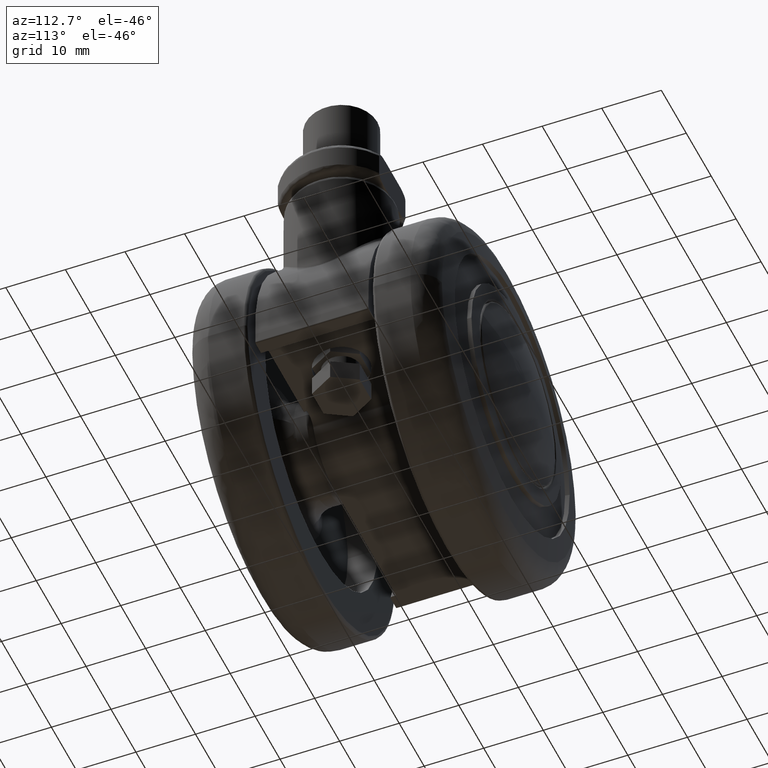
[diagram: clean part render]
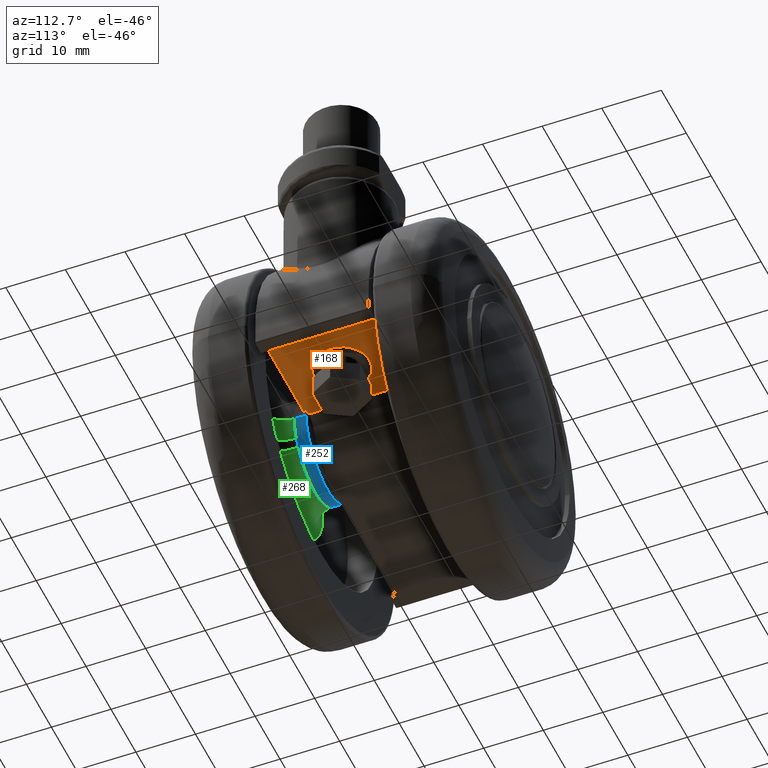
[diagram: same view with three faces highlighted in distinct colors, each labeled with its STEP entity id]
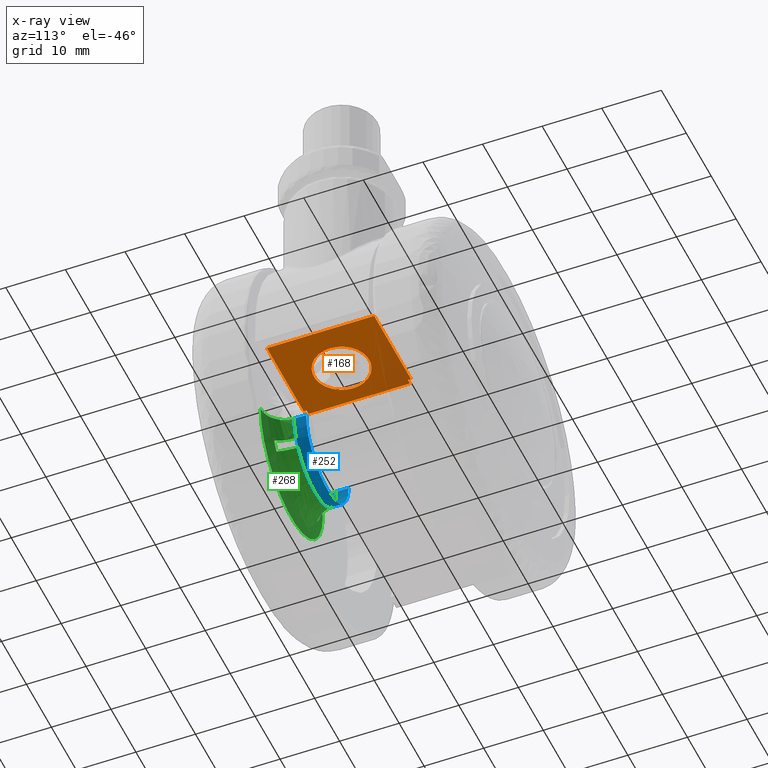
[diagram: x-ray of the same camera — body ghosted, the three highlighted faces saturated]
A machine part, auxiliary view with three faces highlighted in distinct colors.
The next image is the same camera in x-ray (body ghosted, the three faces saturated) — at least one of them is partly hidden behind the body in this view.
Their STEP definitions:

[orange] entity #168 — the highlighted planar face has unit normal (0, 0, 1).
#168=ADVANCED_FACE('',(#410,#411),#409,.F.);
#409=PLANE('',#2024);
#410=FACE_OUTER_BOUND('',#2025,.T.);
#411=FACE_BOUND('',#2026,.T.);
#2021=CARTESIAN_POINT('',(2.70133149300E+01,1.08000000000E+01,-1.50000000000E+00));
#2022=DIRECTION('',(0.00000000000E+00,0.00000000000E+00,1.00000000000E+00));
#2023=DIRECTION('',(-1.00000000000E+00,0.00000000000E+00,0.00000000000E+00));
#2024=AXIS2_PLACEMENT_3D('',#2021,#2022,#2023);
#2025=EDGE_LOOP('',(#4573,#4574,#4575,#4576,#4577,#4578,#4579,#4580));
#2026=EDGE_LOOP('',(#4581,#4582));
#4573=ORIENTED_EDGE('',*,*,#5294,.T.);
#4574=ORIENTED_EDGE('',*,*,#5276,.F.);
#4575=ORIENTED_EDGE('',*,*,#5295,.T.);
#4576=ORIENTED_EDGE('',*,*,#5296,.F.);
#4577=ORIENTED_EDGE('',*,*,#5297,.T.);
#4578=ORIENTED_EDGE('',*,*,#5298,.F.);
#4579=ORIENTED_EDGE('',*,*,#5299,.T.);
#4580=ORIENTED_EDGE('',*,*,#5286,.F.);
#4581=ORIENTED_EDGE('',*,*,#5300,.F.);
#4582=ORIENTED_EDGE('',*,*,#5301,.F.);
#5276=EDGE_CURVE('',#5957,#5964,#5965,.T.);
#5286=EDGE_CURVE('',#6026,#6033,#6034,.T.);
#5294=EDGE_CURVE('',#6026,#5964,#6088,.T.);
#5295=EDGE_CURVE('',#5957,#6094,#6095,.T.);
#5296=EDGE_CURVE('',#6101,#6094,#6102,.T.);
#5297=EDGE_CURVE('',#6101,#6108,#6109,.T.);
#5298=EDGE_CURVE('',#6115,#6108,#6116,.T.);
#5299=EDGE_CURVE('',#6115,#6033,#6122,.T.);
#5300=EDGE_CURVE('',#6128,#6129,#6130,.T.);
#5301=EDGE_CURVE('',#6129,#6128,#6136,.T.);
#5957=VERTEX_POINT('',#8413);
#5964=VERTEX_POINT('',#8418);
#5965=LINE('',#8419,#8420);
#6026=VERTEX_POINT('',#8459);
#6033=VERTEX_POINT('',#8464);
#6034=LINE('',#8465,#8466);
#6088=LINE('',#8501,#8502);
#6094=VERTEX_POINT('',#8504);
#6095=LINE('',#8505,#8506);
#6101=VERTEX_POINT('',#8508);
#6102=LINE('',#8509,#8510);
#6108=VERTEX_POINT('',#8512);
#6109=LINE('',#8513,#8514);
#6115=VERTEX_POINT('',#8516);
#6116=LINE('',#8517,#8518);
#6122=LINE('',#8520,#8521);
#6128=VERTEX_POINT('',#8523);
#6129=VERTEX_POINT('',#8524);
#6130=CIRCLE('',#8528,4.65000000000E+00);
#6136=CIRCLE('',#8532,4.65000000000E+00);
#8413=CARTESIAN_POINT('',(1.07331262920E+01,8.50000000000E+00,-1.50000000000E+00));
#8418=CARTESIAN_POINT('',(9.89949493661E+00,8.50000000000E+00,-1.50000000000E+00));
#8419=CARTESIAN_POINT('',(1.07331262920E+01,8.50000000000E+00,-1.50000000000E+00));
#8420=VECTOR('',#8421,8.33631355387E-01);
#8421=DIRECTION('',(-1.00000000000E+00,0.00000000000E+00,0.00000000000E+00));
#8459=CARTESIAN_POINT('',(9.89949493661E+00,-8.50000000000E+00,-1.50000000000E+00));
#8464=CARTESIAN_POINT('',(1.07331262920E+01,-8.50000000000E+00,-1.50000000000E+00));
#8465=CARTESIAN_POINT('',(9.89949493661E+00,-8.50000000000E+00,-1.50000000000E+00));
#8466=VECTOR('',#8467,8.33631355387E-01);
#8467=DIRECTION('',(1.00000000000E+00,0.00000000000E+00,0.00000000000E+00));
#8501=CARTESIAN_POINT('',(9.89949493661E+00,-8.50000000000E+00,-1.50000000000E+00));
#8502=VECTOR('',#8503,1.70000000000E+01);
#8503=DIRECTION('',(0.00000000000E+00,1.00000000000E+00,0.00000000000E+00));
#8504=CARTESIAN_POINT('',(1.07331262920E+01,9.00000000000E+00,-1.50000000000E+00));
#8505=CARTESIAN_POINT('',(1.07331262920E+01,8.50000000000E+00,-1.50000000000E+00));
#8506=VECTOR('',#8507,5.00000000000E-01);
#8507=DIRECTION('',(0.00000000000E+00,1.00000000000E+00,0.00000000000E+00));
#8508=CARTESIAN_POINT('',(2.54575131125E+01,9.00000000000E+00,-1.50000000000E+00));
#8509=CARTESIAN_POINT('',(2.54575131125E+01,9.00000000000E+00,-1.50000000000E+00));
#8510=VECTOR('',#8511,1.47243868205E+01);
#8511=DIRECTION('',(-1.00000000000E+00,0.00000000000E+00,0.00000000000E+00));
#8512=CARTESIAN_POINT('',(2.54575131125E+01,-9.00000000000E+00,-1.50000000000E+00));
#8513=CARTESIAN_POINT('',(2.54575131125E+01,9.00000000000E+00,-1.50000000000E+00));
#8514=VECTOR('',#8515,1.80000000000E+01);
#8515=DIRECTION('',(-1.97372982156E-16,-1.00000000000E+00,0.00000000000E+00));
#8516=CARTESIAN_POINT('',(1.07331262920E+01,-9.00000000000E+00,-1.50000000000E+00));
#8517=CARTESIAN_POINT('',(1.07331262920E+01,-9.00000000000E+00,-1.50000000000E+00));
#8518=VECTOR('',#8519,1.47243868205E+01);
#8519=DIRECTION('',(1.00000000000E+00,0.00000000000E+00,0.00000000000E+00));
#8520=CARTESIAN_POINT('',(1.07331262920E+01,-9.00000000000E+00,-1.50000000000E+00));
#8521=VECTOR('',#8522,5.00000000000E-01);
#8522=DIRECTION('',(-3.55271367880E-15,1.00000000000E+00,0.00000000000E+00));
#8523=CARTESIAN_POINT('',(1.23500000000E+01,-2.96059473233E-14,-1.50000000000E+00));
#8524=CARTESIAN_POINT('',(2.16500000000E+01,-2.85386886640E-14,-1.50000000000E+00));
#8525=CARTESIAN_POINT('',(1.70000000000E+01,-2.96775913801E-14,-1.50000000000E+00));
#8526=DIRECTION('',(-0.00000000000E+00,0.00000000000E+00,-1.00000000000E+00));
#8527=DIRECTION('',(1.00000000000E+00,1.22464679915E-16,-0.00000000000E+00));
#8528=AXIS2_PLACEMENT_3D('',#8525,#8526,#8527);
#8529=CARTESIAN_POINT('',(1.70000000000E+01,-2.96775913801E-14,-1.50000000000E+00));
#8530=DIRECTION('',(-0.00000000000E+00,0.00000000000E+00,-1.00000000000E+00));
#8531=DIRECTION('',(1.00000000000E+00,1.22464679915E-16,-0.00000000000E+00));
#8532=AXIS2_PLACEMENT_3D('',#8529,#8530,#8531);

[blue] entity #252 — the highlighted cylindrical surface (partial cylindrical patch) has radius 8.5 mm, axis along (-0, 1, -0).
#252=ADVANCED_FACE('',(#1262),#1261,.T.);
#1261=CYLINDRICAL_SURFACE('',#3889,8.50000000000E+00);
#1262=FACE_OUTER_BOUND('',#3890,.T.);
#3886=CARTESIAN_POINT('',(0.00000000000E+00,0.00000000000E+00,2.00767672062E+00));
#3887=DIRECTION('',(-0.00000000000E+00,-0.00000000000E+00,-1.00000000000E+00));
#3888=DIRECTION('',(-1.00000000000E+00,-0.00000000000E+00,-0.00000000000E+00));
#3889=AXIS2_PLACEMENT_3D('',#3886,#3887,#3888);
#3890=EDGE_LOOP('',(#4954,#4955,#4956,#4957,#4958,#4959,#4960,#4961));
#4954=ORIENTED_EDGE('',*,*,#5470,.T.);
#4955=ORIENTED_EDGE('',*,*,#5414,.T.);
#4956=ORIENTED_EDGE('',*,*,#5471,.T.);
#4957=ORIENTED_EDGE('',*,*,#5411,.T.);
#4958=ORIENTED_EDGE('',*,*,#5472,.T.);
#4959=ORIENTED_EDGE('',*,*,#5466,.T.);
#4960=ORIENTED_EDGE('',*,*,#5473,.T.);
#4961=ORIENTED_EDGE('',*,*,#5469,.F.);
#5411=EDGE_CURVE('',#6828,#6843,#6850,.T.);
#5414=EDGE_CURVE('',#6856,#6863,#6870,.T.);
#5466=EDGE_CURVE('',#7224,#7217,#7225,.T.);
#5469=EDGE_CURVE('',#7237,#7216,#7244,.T.);
#5470=EDGE_CURVE('',#7237,#6856,#7250,.T.);
#5471=EDGE_CURVE('',#6863,#6828,#7256,.T.);
#5472=EDGE_CURVE('',#6843,#7224,#7262,.T.);
#5473=EDGE_CURVE('',#7217,#7216,#7268,.T.);
#6828=VERTEX_POINT('',#9087);
#6843=VERTEX_POINT('',#9104);
#6850=(BOUNDED_CURVE() B_SPLINE_CURVE(3,(#9109,#9110,#9111,#9112,#9113,#9114),.UNSPECIFIED.,.F.,.F.) B_SPLINE_CURVE_WITH_KNOTS((4,2,4),(0.00000000000E+00,7.70611198926E-04,1.54122239785E-03),.UNSPECIFIED.) CURVE() GEOMETRIC_REPRESENTATION_ITEM() RATIONAL_B_SPLINE_CURVE((1.00000000000E+00,1.00000000000E+00,1.00000000000E+00,1.00000000000E+00,1.00000000000E+00,1.00000000000E+00)) REPRESENTATION_ITEM('') );
#6856=VERTEX_POINT('',#9115);
#6863=VERTEX_POINT('',#9120);
#6870=(BOUNDED_CURVE() B_SPLINE_CURVE(3,(#9125,#9126,#9127,#9128,#9129,#9130),.UNSPECIFIED.,.F.,.F.) B_SPLINE_CURVE_WITH_KNOTS((4,2,4),(0.00000000000E+00,7.70611198926E-04,1.54122239785E-03),.UNSPECIFIED.) CURVE() GEOMETRIC_REPRESENTATION_ITEM() RATIONAL_B_SPLINE_CURVE((1.00000000000E+00,1.00000000000E+00,1.00000000000E+00,1.00000000000E+00,1.00000000000E+00,1.00000000000E+00)) REPRESENTATION_ITEM('') );
#7216=VERTEX_POINT('',#9369);
#7217=VERTEX_POINT('',#9370);
#7224=VERTEX_POINT('',#9375);
#7225=(BOUNDED_CURVE() B_SPLINE_CURVE(1,(#9376,#9377),.UNSPECIFIED.,.F.,.F.) B_SPLINE_CURVE_WITH_KNOTS((2,2),(8.96818439170E-02,9.16666655561E-01),.UNSPECIFIED.) CURVE() GEOMETRIC_REPRESENTATION_ITEM() RATIONAL_B_SPLINE_CURVE((1.00000000000E+00,1.00000000000E+00)) REPRESENTATION_ITEM('') );
#7237=VERTEX_POINT('',#9382);
#7244=(BOUNDED_CURVE() B_SPLINE_CURVE(1,(#9387,#9388),.UNSPECIFIED.,.F.,.F.) B_SPLINE_CURVE_WITH_KNOTS((2,2),(8.96818539656E-02,9.16666666667E-01),.UNSPECIFIED.) CURVE() GEOMETRIC_REPRESENTATION_ITEM() RATIONAL_B_SPLINE_CURVE((7.50000000000E-01,7.50000000000E-01)) REPRESENTATION_ITEM('') );
#7250=CIRCLE('',#9392,8.50000000000E+00);
#7256=CIRCLE('',#9396,8.50000000000E+00);
#7262=CIRCLE('',#9400,8.50000000000E+00);
#7268=CIRCLE('',#9404,8.50000000000E+00);
#9087=CARTESIAN_POINT('',(-6.94562105686E+00,-4.89983143939E+00,3.00000000000E+00));
#9104=CARTESIAN_POINT('',(-7.71618902921E+00,-3.56516856061E+00,3.00000000000E+00));
#9109=CARTESIAN_POINT('',(-6.94562105686E+00,-4.89983143939E+00,3.00000000000E+00));
#9110=CARTESIAN_POINT('',(-7.09413831819E+00,-4.68930488754E+00,3.00000000000E+00));
#9111=CARTESIAN_POINT('',(-7.23255947090E+00,-4.47281547559E+00,3.01533041055E+00));
#9112=CARTESIAN_POINT('',(-7.48947477384E+00,-4.02787318455E+00,3.01535341529E+00));
#9113=CARTESIAN_POINT('',(-7.60807237796E+00,-3.79916830117E+00,3.00000000000E+00));
#9114=CARTESIAN_POINT('',(-7.71618902921E+00,-3.56516856061E+00,3.00000000000E+00));
#9115=CARTESIAN_POINT('',(7.71618902921E+00,-3.56516856061E+00,3.00000000000E+00));
#9120=CARTESIAN_POINT('',(6.94562105686E+00,-4.89983143939E+00,3.00000000000E+00));
#9125=CARTESIAN_POINT('',(7.71618902921E+00,-3.56516856061E+00,3.00000000000E+00));
#9126=CARTESIAN_POINT('',(7.60812631780E+00,-3.79905155774E+00,3.00000000000E+00));
#9127=CARTESIAN_POINT('',(7.48985156375E+00,-4.02717249839E+00,3.01533041055E+00));
#9128=CARTESIAN_POINT('',(7.23297788796E+00,-4.47213882287E+00,3.01535341529E+00));
#9129=CARTESIAN_POINT('',(7.09421245104E+00,-4.68919980256E+00,3.00000000000E+00));
#9130=CARTESIAN_POINT('',(6.94562105686E+00,-4.89983143939E+00,3.00000000000E+00));
#9369=CARTESIAN_POINT('',(8.50000000000E+00,0.00000000000E+00,1.00000000000E+00));
#9370=CARTESIAN_POINT('',(-8.50000000000E+00,8.88178419700E-16,1.00000000000E+00));
#9375=CARTESIAN_POINT('',(-8.50000000000E+00,2.68219846214E-07,3.00000000000E+00));
#9376=CARTESIAN_POINT('',(-8.50000000000E+00,0.00000000000E+00,3.00000002430E+00));
#9377=CARTESIAN_POINT('',(-8.50000000000E+00,0.00000000000E+00,1.00000002686E+00));
#9382=CARTESIAN_POINT('',(8.49999863885E+00,4.81035715597E-03,3.00000000000E+00));
#9387=CARTESIAN_POINT('',(8.50000000000E+00,-2.96059473233E-16,3.00000000000E+00));
#9388=CARTESIAN_POINT('',(8.50000000000E+00,-2.96059473233E-16,1.00000000000E+00));
#9389=CARTESIAN_POINT('',(0.00000000000E+00,0.00000000000E+00,3.00000000000E+00));
#9390=DIRECTION('',(0.00000000000E+00,0.00000000000E+00,-1.00000000000E+00));
#9391=DIRECTION('',(-9.06550555697E-02,-9.95882352941E-01,-0.00000000000E+00));
#9392=AXIS2_PLACEMENT_3D('',#9389,#9390,#9391);
#9393=CARTESIAN_POINT('',(0.00000000000E+00,0.00000000000E+00,3.00000000000E+00));
#9394=DIRECTION('',(0.00000000000E+00,0.00000000000E+00,-1.00000000000E+00));
#9395=DIRECTION('',(-8.17131889043E-01,5.76450757575E-01,-0.00000000000E+00));
#9396=AXIS2_PLACEMENT_3D('',#9393,#9394,#9395);
#9397=CARTESIAN_POINT('',(0.00000000000E+00,0.00000000000E+00,3.00000000000E+00));
#9398=DIRECTION('',(0.00000000000E+00,0.00000000000E+00,-1.00000000000E+00));
#9399=DIRECTION('',(1.00000000000E+00,-1.22464679915E-16,-0.00000000000E+00));
#9400=AXIS2_PLACEMENT_3D('',#9397,#9398,#9399);
#9401=CARTESIAN_POINT('',(0.00000000000E+00,0.00000000000E+00,1.00000000000E+00));
#9402=DIRECTION('',(0.00000000000E+00,0.00000000000E+00,1.00000000000E+00));
#9403=DIRECTION('',(1.00000000000E+00,-1.22460635382E-16,0.00000000000E+00));
#9404=AXIS2_PLACEMENT_3D('',#9401,#9402,#9403);

[green] entity #268 — the highlighted face is a freeform B-spline surface patch.
#268=ADVANCED_FACE('',(#1422),#1421,.F.);
#1421=( BOUNDED_SURFACE() B_SPLINE_SURFACE( 2,2,((#4125,#4126,#4127,#4128,#4129),(#4130,#4131,#4132,#4133,#4134),(#4135,#4136,#4137,#4138,#4139),(#4140,#4141,#4142,#4143,#4144),(#4145,#4146,#4147,#4148,#4149)), .UNSPECIFIED.,.F.,.F.,.F.) B_SPLINE_SURFACE_WITH_KNOTS((3,2,3),(3,2,3),(1.57079632680E+00,2.09441127550E+00,3.14164117290E+00),(3.14159265359E+00,4.71238898038E+00,6.28318530718E+00), .UNSPECIFIED. ) GEOMETRIC_REPRESENTATION_ITEM() RATIONAL_B_SPLINE_SURFACE(((9.33008658559E-01,6.59736749373E-01,9.33008658559E-01,6.59736749373E-01,9.33008658559E-01),(9.33008658559E-01,6.59736749373E-01,9.33008658559E-01,6.59736749373E-01,9.33008658559E-01),(1.00000000000E+00,7.07106781187E-01,1.00000000000E+00,7.07106781187E-01,1.00000000000E+00),(8.66017317119E-01,6.12366717560E-01,8.66017317119E-01,6.12366717560E-01,8.66017317119E-01),(1.00000000000E+00,7.07106781187E-01,1.00000000000E+00,7.07106781187E-01,1.00000000000E+00))) REPRESENTATION_ITEM('') SURFACE() );
#1422=FACE_OUTER_BOUND('',#4150,.T.);
#4125=CARTESIAN_POINT('',(1.25000000000E+01,-1.53075794228E-15,7.00000000000E+00));
#4126=CARTESIAN_POINT('',(1.25000000000E+01,-1.25000000000E+01,7.00000000000E+00));
#4127=CARTESIAN_POINT('',(-1.53075794228E-15,-1.25000000000E+01,7.00000000000E+00));
#4128=CARTESIAN_POINT('',(-1.25000000000E+01,-1.25000000000E+01,7.00000000000E+00));
#4129=CARTESIAN_POINT('',(-1.25000000000E+01,1.53075794228E-15,7.00000000000E+00));
#4130=CARTESIAN_POINT('',(1.14281685616E+01,-1.39950078331E-15,7.00000000000E+00));
#4131=CARTESIAN_POINT('',(1.14281685616E+01,-1.14281685616E+01,7.00000000000E+00));
#4132=CARTESIAN_POINT('',(-1.39950078331E-15,-1.14281685616E+01,7.00000000000E+00));
#4133=CARTESIAN_POINT('',(-1.14281685616E+01,-1.14281685616E+01,7.00000000000E+00));
#4134=CARTESIAN_POINT('',(-1.14281685616E+01,1.39950078331E-15,7.00000000000E+00));
#4135=CARTESIAN_POINT('',(1.04999439750E+01,-1.28582981065E-15,6.46406926847E+00));
#4136=CARTESIAN_POINT('',(1.04999439750E+01,-1.04999439750E+01,6.46406926847E+00));
#4137=CARTESIAN_POINT('',(-1.28582981065E-15,-1.04999439750E+01,6.46406926847E+00));
#4138=CARTESIAN_POINT('',(-1.04999439750E+01,-1.04999439750E+01,6.46406926847E+00));
#4139=CARTESIAN_POINT('',(-1.04999439750E+01,1.28582981065E-15,6.46406926847E+00));
#4140=CARTESIAN_POINT('',(8.49988794996E+00,-1.04090167903E-15,5.30929325415E+00));
#4141=CARTESIAN_POINT('',(8.49988794996E+00,-8.49988794996E+00,5.30929325415E+00));
#4142=CARTESIAN_POINT('',(-1.04090167903E-15,-8.49988794996E+00,5.30929325415E+00));
#4143=CARTESIAN_POINT('',(-8.49988794996E+00,-8.49988794996E+00,5.30929325415E+00));
#4144=CARTESIAN_POINT('',(-8.49988794996E+00,1.04090167903E-15,5.30929325415E+00));
#4145=CARTESIAN_POINT('',(8.50000000471E+00,-1.04091540133E-15,2.99980592274E+00));
#4146=CARTESIAN_POINT('',(8.50000000471E+00,-8.50000000471E+00,2.99980592274E+00));
#4147=CARTESIAN_POINT('',(-1.04091540133E-15,-8.50000000471E+00,2.99980592274E+00));
#4148=CARTESIAN_POINT('',(-8.50000000471E+00,-8.50000000471E+00,2.99980592274E+00));
#4149=CARTESIAN_POINT('',(-8.50000000471E+00,1.04091540133E-15,2.99980592274E+00));
#4150=EDGE_LOOP('',(#5029,#5030,#5031,#5032,#5033,#5034,#5035,#5036,#5037,#5038,#5039,#5040));
#5029=ORIENTED_EDGE('',*,*,#5432,.F.);
#5030=ORIENTED_EDGE('',*,*,#5492,.T.);
#5031=ORIENTED_EDGE('',*,*,#5472,.F.);
#5032=ORIENTED_EDGE('',*,*,#5410,.T.);
#5033=ORIENTED_EDGE('',*,*,#5451,.F.);
#5034=ORIENTED_EDGE('',*,*,#5408,.F.);
#5035=ORIENTED_EDGE('',*,*,#5471,.F.);
#5036=ORIENTED_EDGE('',*,*,#5413,.F.);
#5037=ORIENTED_EDGE('',*,*,#5407,.F.);
#5038=ORIENTED_EDGE('',*,*,#5412,.T.);
#5039=ORIENTED_EDGE('',*,*,#5470,.F.);
#5040=ORIENTED_EDGE('',*,*,#5493,.F.);
#5407=EDGE_CURVE('',#6814,#6815,#6822,.T.);
#5408=EDGE_CURVE('',#6828,#6829,#6830,.T.);
#5410=EDGE_CURVE('',#6843,#6836,#6844,.T.);
#5412=EDGE_CURVE('',#6814,#6856,#6857,.T.);
#5413=EDGE_CURVE('',#6815,#6863,#6864,.T.);
#5432=EDGE_CURVE('',#6989,#6988,#6996,.T.);
#5451=EDGE_CURVE('',#6829,#6836,#7128,.T.);
#5470=EDGE_CURVE('',#7237,#6856,#7250,.T.);
#5471=EDGE_CURVE('',#6863,#6828,#7256,.T.);
#5472=EDGE_CURVE('',#6843,#7224,#7262,.T.);
#5492=EDGE_CURVE('',#6989,#7224,#7386,.T.);
#5493=EDGE_CURVE('',#6988,#7237,#7392,.T.);
#6814=VERTEX_POINT('',#9071);
#6815=VERTEX_POINT('',#9072);
#6822=CIRCLE('',#9086,1.00000000000E+01);
#6828=VERTEX_POINT('',#9087);
#6829=VERTEX_POINT('',#9088);
#6830=CIRCLE('',#9092,4.00000000000E+00);
#6836=VERTEX_POINT('',#9093);
#6843=VERTEX_POINT('',#9104);
#6844=CIRCLE('',#9108,4.00000000000E+00);
#6856=VERTEX_POINT('',#9115);
#6857=CIRCLE('',#9119,4.00000000000E+00);
#6863=VERTEX_POINT('',#9120);
#6864=CIRCLE('',#9124,4.00000000000E+00);
#6988=VERTEX_POINT('',#9211);
#6989=VERTEX_POINT('',#9212);
#6996=CIRCLE('',#9220,1.25000000000E+01);
#7128=CIRCLE('',#9320,1.00000000000E+01);
#7224=VERTEX_POINT('',#9375);
#7237=VERTEX_POINT('',#9382);
#7250=CIRCLE('',#9392,8.50000000000E+00);
#7256=CIRCLE('',#9396,8.50000000000E+00);
#7262=CIRCLE('',#9400,8.50000000000E+00);
#7386=(BOUNDED_CURVE() B_SPLINE_CURVE(2,(#9462,#9463,#9464,#9465,#9466),.UNSPECIFIED.,.F.,.F.) B_SPLINE_CURVE_WITH_KNOTS((3,2,3),(1.57079632679E+00,2.09441127550E+00,3.14159037102E+00),.UNSPECIFIED.) CURVE() GEOMETRIC_REPRESENTATION_ITEM() RATIONAL_B_SPLINE_CURVE((9.33008658559E-01,9.33008658559E-01,1.00000000000E+00,8.66023816717E-01,9.99987001435E-01)) REPRESENTATION_ITEM('') );
#7392=(BOUNDED_CURVE() B_SPLINE_CURVE(2,(#9467,#9468,#9469,#9470,#9471),.UNSPECIFIED.,.F.,.F.) B_SPLINE_CURVE_WITH_KNOTS((3,2,3),(1.57079632679E+00,2.09441127550E+00,3.14164117290E+00),.UNSPECIFIED.) CURVE() GEOMETRIC_REPRESENTATION_ITEM() RATIONAL_B_SPLINE_CURVE((9.33008658559E-01,9.33008658559E-01,1.00000000000E+00,8.66017317119E-01,1.00000000000E+00)) REPRESENTATION_ITEM('') );
#9071=CARTESIAN_POINT('',(9.07786944612E+00,-4.19431595366E+00,6.12249899920E+00));
#9072=CARTESIAN_POINT('',(8.17131889043E+00,-5.76450757575E+00,6.12249899920E+00));
#9083=CARTESIAN_POINT('',(0.00000000000E+00,0.00000000000E+00,6.12249899920E+00));
#9084=DIRECTION('',(-0.00000000000E+00,0.00000000000E+00,-1.00000000000E+00));
#9085=DIRECTION('',(1.00000000000E+00,-0.00000000000E+00,-0.00000000000E+00));
#9086=AXIS2_PLACEMENT_3D('',#9083,#9084,#9085);
#9087=CARTESIAN_POINT('',(-6.94562105686E+00,-4.89983143939E+00,3.00000000000E+00));
#9088=CARTESIAN_POINT('',(-8.17131889043E+00,-5.76450757575E+00,6.12249899920E+00));
#9089=CARTESIAN_POINT('',(-1.02141486130E+01,-7.20563446969E+00,3.00000000000E+00));
#9090=DIRECTION('',(5.76450757575E-01,-8.17131889043E-01,-1.04378802245E-16));
#9091=DIRECTION('',(-8.17131889043E-01,-5.76450757575E-01,-2.68673971959E-14));
#9092=AXIS2_PLACEMENT_3D('',#9089,#9090,#9091);
#9093=CARTESIAN_POINT('',(-9.07786944613E+00,-4.19431595366E+00,6.12249899920E+00));
#9104=CARTESIAN_POINT('',(-7.71618902921E+00,-3.56516856061E+00,3.00000000000E+00));
#9105=CARTESIAN_POINT('',(-1.13473368077E+01,-5.24289494207E+00,3.00000000000E+00));
#9106=DIRECTION('',(4.19431595366E-01,-9.07786944613E-01,-2.80002669275E-16));
#9107=DIRECTION('',(-9.07786944613E-01,-4.19431595366E-01,2.68673971959E-14));
#9108=AXIS2_PLACEMENT_3D('',#9105,#9106,#9107);
#9115=CARTESIAN_POINT('',(7.71618902921E+00,-3.56516856061E+00,3.00000000000E+00));
#9116=CARTESIAN_POINT('',(1.13473368077E+01,-5.24289494207E+00,3.00000000000E+00));
#9117=DIRECTION('',(-4.19431595366E-01,-9.07786944612E-01,2.61861919781E-13));
#9118=DIRECTION('',(-5.19584375525E-14,-2.64455124466E-13,-1.00000000000E+00));
#9119=AXIS2_PLACEMENT_3D('',#9116,#9117,#9118);
#9120=CARTESIAN_POINT('',(6.94562105686E+00,-4.89983143939E+00,3.00000000000E+00));
#9121=CARTESIAN_POINT('',(1.02141486130E+01,-7.20563446969E+00,3.00000000000E+00));
#9122=DIRECTION('',(-5.76450757575E-01,-8.17131889043E-01,0.00000000000E+00));
#9123=DIRECTION('',(-0.00000000000E+00,-0.00000000000E+00,-1.00000000000E+00));
#9124=AXIS2_PLACEMENT_3D('',#9121,#9122,#9123);
#9211=CARTESIAN_POINT('',(1.25000000000E+01,0.00000000000E+00,7.00000000000E+00));
#9212=CARTESIAN_POINT('',(-1.25000000000E+01,0.00000000000E+00,7.00000000000E+00));
#9217=CARTESIAN_POINT('',(0.00000000000E+00,0.00000000000E+00,7.00000000000E+00));
#9218=DIRECTION('',(0.00000000000E+00,0.00000000000E+00,1.00000000000E+00));
#9219=DIRECTION('',(1.00000000000E+00,-1.22460635382E-16,0.00000000000E+00));
#9220=AXIS2_PLACEMENT_3D('',#9217,#9218,#9219);
#9317=CARTESIAN_POINT('',(0.00000000000E+00,0.00000000000E+00,6.12249899920E+00));
#9318=DIRECTION('',(-0.00000000000E+00,0.00000000000E+00,-1.00000000000E+00));
#9319=DIRECTION('',(1.00000000000E+00,-0.00000000000E+00,-0.00000000000E+00));
#9320=AXIS2_PLACEMENT_3D('',#9317,#9318,#9319);
#9375=CARTESIAN_POINT('',(-8.50000000000E+00,2.68219846214E-07,3.00000000000E+00));
#9382=CARTESIAN_POINT('',(8.49999863885E+00,4.81035715597E-03,3.00000000000E+00));
#9389=CARTESIAN_POINT('',(0.00000000000E+00,0.00000000000E+00,3.00000000000E+00));
#9390=DIRECTION('',(0.00000000000E+00,0.00000000000E+00,-1.00000000000E+00));
#9391=DIRECTION('',(-9.06550555697E-02,-9.95882352941E-01,-0.00000000000E+00));
#9392=AXIS2_PLACEMENT_3D('',#9389,#9390,#9391);
#9393=CARTESIAN_POINT('',(0.00000000000E+00,0.00000000000E+00,3.00000000000E+00));
#9394=DIRECTION('',(0.00000000000E+00,0.00000000000E+00,-1.00000000000E+00));
#9395=DIRECTION('',(-8.17131889043E-01,5.76450757575E-01,-0.00000000000E+00));
#9396=AXIS2_PLACEMENT_3D('',#9393,#9394,#9395);
#9397=CARTESIAN_POINT('',(0.00000000000E+00,0.00000000000E+00,3.00000000000E+00));
#9398=DIRECTION('',(0.00000000000E+00,0.00000000000E+00,-1.00000000000E+00));
#9399=DIRECTION('',(1.00000000000E+00,-1.22464679915E-16,-0.00000000000E+00));
#9400=AXIS2_PLACEMENT_3D('',#9397,#9398,#9399);
#9462=CARTESIAN_POINT('',(-1.25000000000E+01,1.53075794228E-15,7.00000000000E+00));
#9463=CARTESIAN_POINT('',(-1.14281685616E+01,1.39950078331E-15,7.00000000000E+00));
#9464=CARTESIAN_POINT('',(-1.04999439750E+01,1.28582981065E-15,6.46406926847E+00));
#9465=CARTESIAN_POINT('',(-8.49999998404E+00,1.04091539879E-15,5.30935793947E+00));
#9466=CARTESIAN_POINT('',(-8.50000000000E+00,1.04091540075E-15,2.99999997236E+00));
#9467=CARTESIAN_POINT('',(1.25000000000E+01,-1.53075794228E-15,7.00000000000E+00));
#9468=CARTESIAN_POINT('',(1.14281685616E+01,-1.39950078331E-15,7.00000000000E+00));
#9469=CARTESIAN_POINT('',(1.04999439750E+01,-1.28582981065E-15,6.46406926847E+00));
#9470=CARTESIAN_POINT('',(8.49988794996E+00,-1.04090167903E-15,5.30929325415E+00));
#9471=CARTESIAN_POINT('',(8.50000000471E+00,-1.04091540133E-15,2.99980592274E+00));